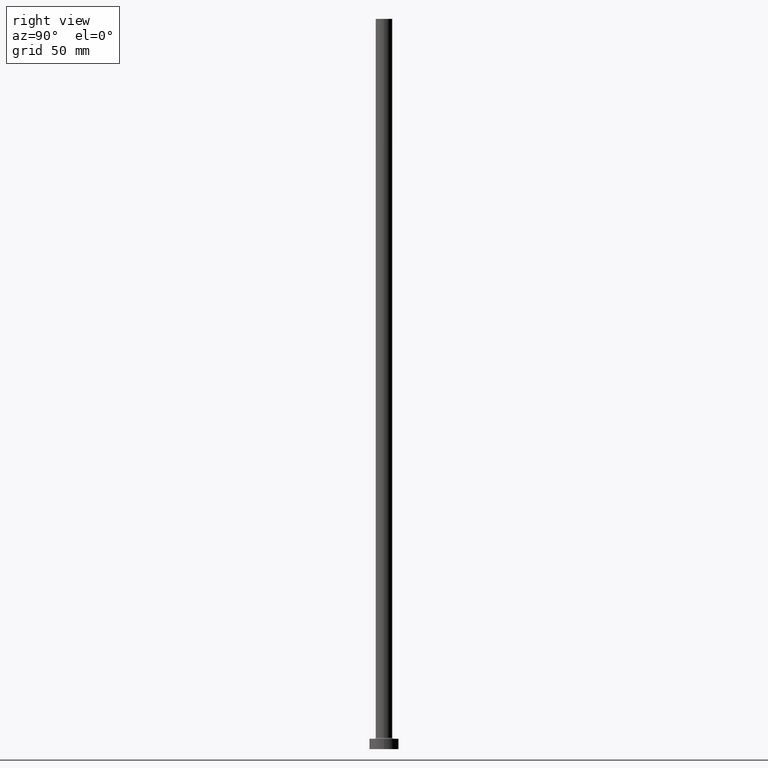
[diagram: clean part render]
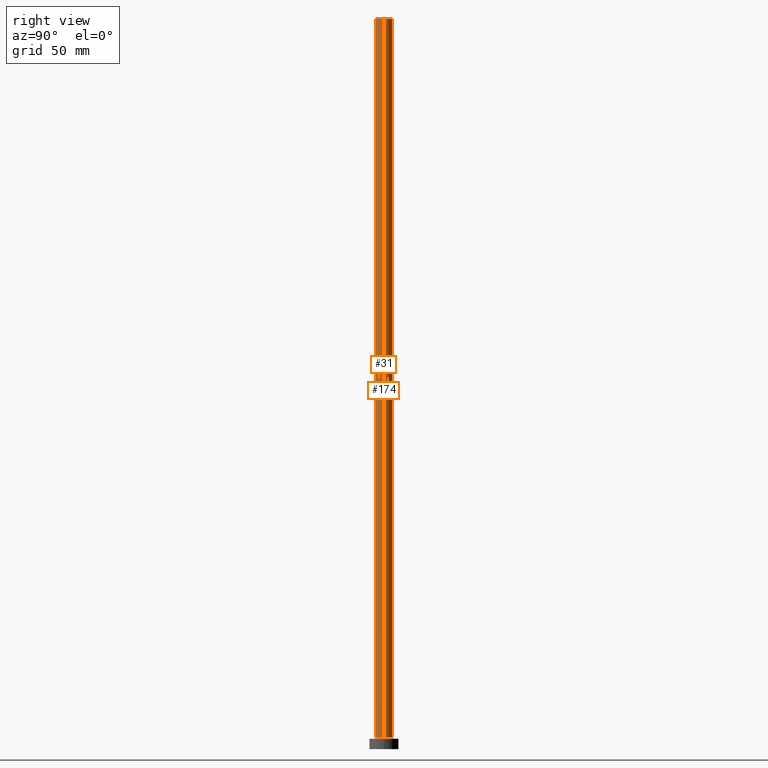
[diagram: same view with one multi-face feature highlighted, each face labeled with its STEP entity id]
A machine part, right view. The highlighted faces form ONE feature: a constant-radius fillet chain: 2 tangent blend faces with common blend radius 4 mm. The faces share edges in the B-rep.
Their STEP definitions:
[1] entity #31 (Cylinder):
#3 = EDGE_CURVE ( 'NONE', #189, #116, #121, .T. ) ;
#8 = ORIENTED_EDGE ( 'NONE', *, *, #188, .T. ) ;
#16 = ORIENTED_EDGE ( 'NONE', *, *, #257, .T. ) ;
#25 = DIRECTION ( 'NONE',  ( 0.000000000000000000, 0.000000000000000000, 1.000000000000000000 ) ) ;
#31 = ADVANCED_FACE ( 'NONE', ( #333 ), #198, .T. ) ;
#43 = EDGE_LOOP ( 'NONE', ( #118, #331, #16, #8 ) ) ;
#59 = AXIS2_PLACEMENT_3D ( 'NONE', #207, #423, #204 ) ;
#116 = VERTEX_POINT ( 'NONE', #256 ) ;
#118 = ORIENTED_EDGE ( 'NONE', *, *, #212, .F. ) ;
#121 = CIRCLE ( 'NONE', #129, 4.000000000000000000 ) ;
#129 = AXIS2_PLACEMENT_3D ( 'NONE', #181, #25, #231 ) ;
#139 = CARTESIAN_POINT ( 'NONE',  ( 4.000000000000000000, 4.898587196589412829E-16, 350.0000000000000000 ) ) ;
#157 = CARTESIAN_POINT ( 'NONE',  ( 0.000000000000000000, 0.000000000000000000, 350.0000000000000000 ) ) ;
#167 = LINE ( 'NONE', #273, #348 ) ;
#181 = CARTESIAN_POINT ( 'NONE',  ( 0.000000000000000000, 0.000000000000000000, 350.0000000000000000 ) ) ;
#188 = EDGE_CURVE ( 'NONE', #400, #289, #341, .T. ) ;
#189 = VERTEX_POINT ( 'NONE', #272 ) ;
#198 = CYLINDRICAL_SURFACE ( 'NONE', #388, 4.000000000000000000 ) ;
#204 = DIRECTION ( 'NONE',  ( 1.000000000000000000, 0.000000000000000000, 0.000000000000000000 ) ) ;
#207 = CARTESIAN_POINT ( 'NONE',  ( 0.000000000000000000, 0.000000000000000000, 5.500000000000005329 ) ) ;
#212 = EDGE_CURVE ( 'NONE', #116, #289, #270, .T. ) ;
#231 = DIRECTION ( 'NONE',  ( 1.000000000000000000, 0.000000000000000000, 0.000000000000000000 ) ) ;
#256 = CARTESIAN_POINT ( 'NONE',  ( 4.000000000000000000, 4.898587196589412829E-16, 350.0000000000000000 ) ) ;
#257 = EDGE_CURVE ( 'NONE', #189, #400, #167, .T. ) ;
#270 = LINE ( 'NONE', #139, #412 ) ;
#272 = CARTESIAN_POINT ( 'NONE',  ( -4.000000000000000000, 0.000000000000000000, 350.0000000000000000 ) ) ;
#273 = CARTESIAN_POINT ( 'NONE',  ( -4.000000000000000000, 0.000000000000000000, 350.0000000000000000 ) ) ;
#289 = VERTEX_POINT ( 'NONE', #309 ) ;
#301 = DIRECTION ( 'NONE',  ( -0.000000000000000000, -0.000000000000000000, -1.000000000000000000 ) ) ;
#309 = CARTESIAN_POINT ( 'NONE',  ( 4.000000000000000000, 4.898587196589412829E-16, 5.500000000000005329 ) ) ;
#331 = ORIENTED_EDGE ( 'NONE', *, *, #3, .F. ) ;
#333 = FACE_OUTER_BOUND ( 'NONE', #43, .T. ) ;
#341 = CIRCLE ( 'NONE', #59, 4.000000000000000000 ) ;
#348 = VECTOR ( 'NONE', #459, 1000.000000000000000 ) ;
#349 = DIRECTION ( 'NONE',  ( -0.000000000000000000, -0.000000000000000000, -1.000000000000000000 ) ) ;
#388 = AXIS2_PLACEMENT_3D ( 'NONE', #157, #301, #448 ) ;
#400 = VERTEX_POINT ( 'NONE', #440 ) ;
#412 = VECTOR ( 'NONE', #349, 1000.000000000000000 ) ;
#423 = DIRECTION ( 'NONE',  ( 0.000000000000000000, 0.000000000000000000, 1.000000000000000000 ) ) ;
#440 = CARTESIAN_POINT ( 'NONE',  ( -4.000000000000000000, 0.000000000000000000, 5.500000000000005329 ) ) ;
#448 = DIRECTION ( 'NONE',  ( -1.000000000000000000, 0.000000000000000000, 0.000000000000000000 ) ) ;
#459 = DIRECTION ( 'NONE',  ( -0.000000000000000000, -0.000000000000000000, -1.000000000000000000 ) ) ;
[2] entity #174 (Cylinder):
#14 = ORIENTED_EDGE ( 'NONE', *, *, #357, .T. ) ;
#24 = AXIS2_PLACEMENT_3D ( 'NONE', #62, #149, #290 ) ;
#33 = DIRECTION ( 'NONE',  ( 0.000000000000000000, 0.000000000000000000, 1.000000000000000000 ) ) ;
#51 = CARTESIAN_POINT ( 'NONE',  ( 0.000000000000000000, 0.000000000000000000, 350.0000000000000000 ) ) ;
#62 = CARTESIAN_POINT ( 'NONE',  ( 0.000000000000000000, 0.000000000000000000, 5.500000000000005329 ) ) ;
#89 = DIRECTION ( 'NONE',  ( -0.000000000000000000, -0.000000000000000000, -1.000000000000000000 ) ) ;
#116 = VERTEX_POINT ( 'NONE', #256 ) ;
#139 = CARTESIAN_POINT ( 'NONE',  ( 4.000000000000000000, 4.898587196589412829E-16, 350.0000000000000000 ) ) ;
#145 = ORIENTED_EDGE ( 'NONE', *, *, #237, .F. ) ;
#149 = DIRECTION ( 'NONE',  ( 0.000000000000000000, 0.000000000000000000, 1.000000000000000000 ) ) ;
#167 = LINE ( 'NONE', #273, #348 ) ;
#174 = ADVANCED_FACE ( 'NONE', ( #409 ), #367, .T. ) ;
#189 = VERTEX_POINT ( 'NONE', #272 ) ;
#192 = DIRECTION ( 'NONE',  ( -1.000000000000000000, 0.000000000000000000, 0.000000000000000000 ) ) ;
#212 = EDGE_CURVE ( 'NONE', #116, #289, #270, .T. ) ;
#233 = AXIS2_PLACEMENT_3D ( 'NONE', #305, #33, #277 ) ;
#237 = EDGE_CURVE ( 'NONE', #116, #189, #442, .T. ) ;
#256 = CARTESIAN_POINT ( 'NONE',  ( 4.000000000000000000, 4.898587196589412829E-16, 350.0000000000000000 ) ) ;
#257 = EDGE_CURVE ( 'NONE', #189, #400, #167, .T. ) ;
#270 = LINE ( 'NONE', #139, #412 ) ;
#272 = CARTESIAN_POINT ( 'NONE',  ( -4.000000000000000000, 0.000000000000000000, 350.0000000000000000 ) ) ;
#273 = CARTESIAN_POINT ( 'NONE',  ( -4.000000000000000000, 0.000000000000000000, 350.0000000000000000 ) ) ;
#277 = DIRECTION ( 'NONE',  ( 1.000000000000000000, 0.000000000000000000, 0.000000000000000000 ) ) ;
#289 = VERTEX_POINT ( 'NONE', #309 ) ;
#290 = DIRECTION ( 'NONE',  ( 1.000000000000000000, 0.000000000000000000, 0.000000000000000000 ) ) ;
#305 = CARTESIAN_POINT ( 'NONE',  ( 0.000000000000000000, 0.000000000000000000, 350.0000000000000000 ) ) ;
#306 = ORIENTED_EDGE ( 'NONE', *, *, #212, .T. ) ;
#309 = CARTESIAN_POINT ( 'NONE',  ( 4.000000000000000000, 4.898587196589412829E-16, 5.500000000000005329 ) ) ;
#327 = ORIENTED_EDGE ( 'NONE', *, *, #257, .F. ) ;
#348 = VECTOR ( 'NONE', #459, 1000.000000000000000 ) ;
#349 = DIRECTION ( 'NONE',  ( -0.000000000000000000, -0.000000000000000000, -1.000000000000000000 ) ) ;
#357 = EDGE_CURVE ( 'NONE', #289, #400, #377, .T. ) ;
#367 = CYLINDRICAL_SURFACE ( 'NONE', #403, 4.000000000000000000 ) ;
#377 = CIRCLE ( 'NONE', #24, 4.000000000000000000 ) ;
#398 = EDGE_LOOP ( 'NONE', ( #145, #306, #14, #327 ) ) ;
#400 = VERTEX_POINT ( 'NONE', #440 ) ;
#403 = AXIS2_PLACEMENT_3D ( 'NONE', #51, #89, #192 ) ;
#409 = FACE_OUTER_BOUND ( 'NONE', #398, .T. ) ;
#412 = VECTOR ( 'NONE', #349, 1000.000000000000000 ) ;
#440 = CARTESIAN_POINT ( 'NONE',  ( -4.000000000000000000, 0.000000000000000000, 5.500000000000005329 ) ) ;
#442 = CIRCLE ( 'NONE', #233, 4.000000000000000000 ) ;
#459 = DIRECTION ( 'NONE',  ( -0.000000000000000000, -0.000000000000000000, -1.000000000000000000 ) ) ;